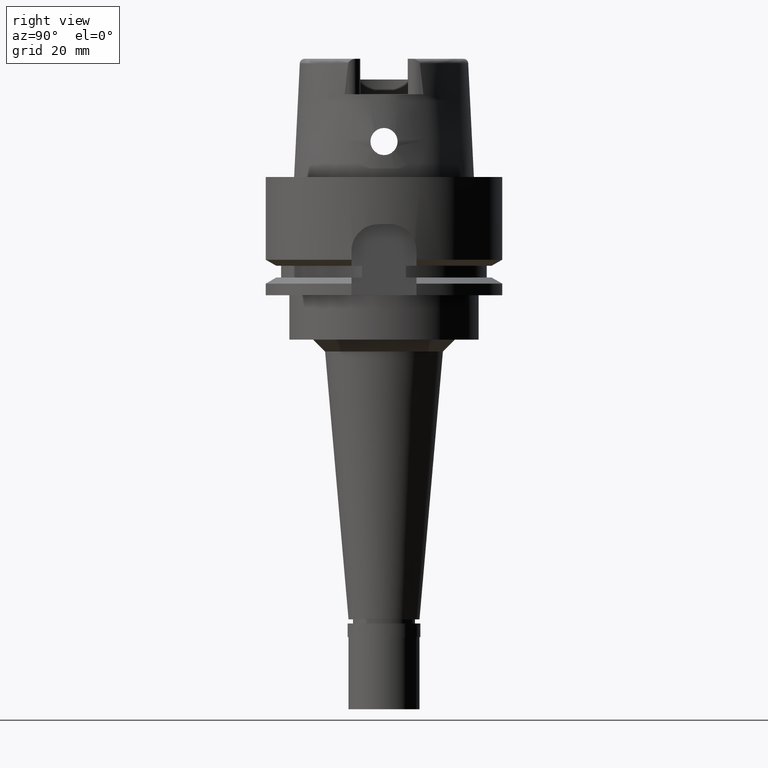
[diagram: clean part render]
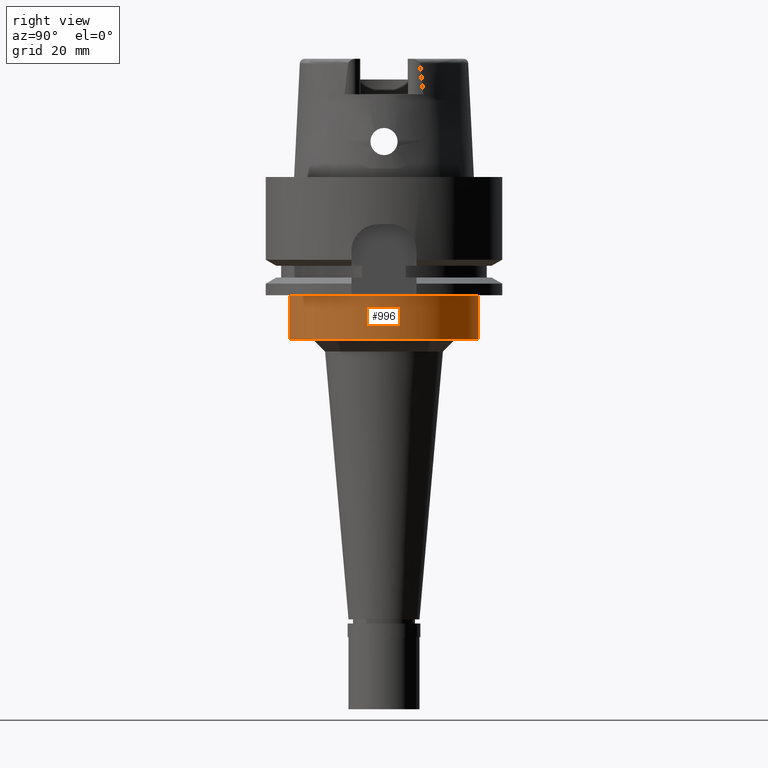
[diagram: same view with one face highlighted and labeled with its STEP entity id]
A machine part, right view. The second image highlights one B-rep face of the part: STEP entity #996.
In plain terms, the highlighted cylindrical surface (partial cylindrical patch) has radius 16 mm, axis along (0, 0, -1).
Its self-contained STEP definition (entity closure, byte-faithful):
#200 = DIRECTION ( 'NONE',  ( 0.0000000000000000000, 0.0000000000000000000, -1.000000000000000000 ) ) ;
#312 = LINE ( 'NONE', #3135, #4010 ) ;
#488 = VERTEX_POINT ( 'NONE', #2368 ) ;
#590 = CARTESIAN_POINT ( 'NONE',  ( 0.0000000000000000000, 16.00000000000000000, -20.00000000000000000 ) ) ;
#811 = ORIENTED_EDGE ( 'NONE', *, *, #1245, .F. ) ;
#996 = ADVANCED_FACE ( 'NONE', ( #4768 ), #5252, .T. ) ;
#1017 = EDGE_LOOP ( 'NONE', ( #2930, #2815, #3536, #811 ) ) ;
#1035 = AXIS2_PLACEMENT_3D ( 'NONE', #4769, #1939, #3998 ) ;
#1174 = DIRECTION ( 'NONE',  ( 0.0000000000000000000, 0.0000000000000000000, -1.000000000000000000 ) ) ;
#1245 = EDGE_CURVE ( 'NONE', #1404, #5308, #1365, .T. ) ;
#1365 = LINE ( 'NONE', #590, #1605 ) ;
#1404 = VERTEX_POINT ( 'NONE', #2779 ) ;
#1516 = AXIS2_PLACEMENT_3D ( 'NONE', #4843, #1174, #2786 ) ;
#1605 = VECTOR ( 'NONE', #2587, 1000.000000000000000 ) ;
#1939 = DIRECTION ( 'NONE',  ( 0.0000000000000000000, 0.0000000000000000000, 1.000000000000000000 ) ) ;
#2355 = EDGE_CURVE ( 'NONE', #1404, #4352, #5214, .T. ) ;
#2368 = CARTESIAN_POINT ( 'NONE',  ( 0.0000000000000000000, -16.00000000000000000, -27.50000000000000000 ) ) ;
#2587 = DIRECTION ( 'NONE',  ( 0.0000000000000000000, 0.0000000000000000000, -1.000000000000000000 ) ) ;
#2627 = CARTESIAN_POINT ( 'NONE',  ( 0.0000000000000000000, 1.534482439332000152E-14, -20.00000000000000000 ) ) ;
#2710 = AXIS2_PLACEMENT_3D ( 'NONE', #2627, #200, #4213 ) ;
#2779 = CARTESIAN_POINT ( 'NONE',  ( 0.0000000000000000000, 16.00000000000000000, -20.00000000000000000 ) ) ;
#2786 = DIRECTION ( 'NONE',  ( 0.0000000000000000000, -1.000000000000000000, 0.0000000000000000000 ) ) ;
#2815 = ORIENTED_EDGE ( 'NONE', *, *, #3198, .T. ) ;
#2874 = EDGE_CURVE ( 'NONE', #488, #5308, #4006, .T. ) ;
#2930 = ORIENTED_EDGE ( 'NONE', *, *, #2355, .T. ) ;
#3135 = CARTESIAN_POINT ( 'NONE',  ( 0.0000000000000000000, -16.00000000000000000, -20.00000000000000000 ) ) ;
#3198 = EDGE_CURVE ( 'NONE', #4352, #488, #312, .T. ) ;
#3536 = ORIENTED_EDGE ( 'NONE', *, *, #2874, .T. ) ;
#3855 = CARTESIAN_POINT ( 'NONE',  ( 0.0000000000000000000, 16.00000000000000000, -27.50000000000000000 ) ) ;
#3998 = DIRECTION ( 'NONE',  ( 0.0000000000000000000, -1.000000000000000000, 0.0000000000000000000 ) ) ;
#4006 = CIRCLE ( 'NONE', #1035, 16.00000000000000000 ) ;
#4007 = CARTESIAN_POINT ( 'NONE',  ( 0.0000000000000000000, -16.00000000000000000, -20.00000000000000000 ) ) ;
#4010 = VECTOR ( 'NONE', #5246, 1000.000000000000000 ) ;
#4213 = DIRECTION ( 'NONE',  ( 0.0000000000000000000, 1.000000000000000000, 0.0000000000000000000 ) ) ;
#4352 = VERTEX_POINT ( 'NONE', #4007 ) ;
#4768 = FACE_OUTER_BOUND ( 'NONE', #1017, .T. ) ;
#4769 = CARTESIAN_POINT ( 'NONE',  ( 0.0000000000000000000, 1.534482439332000152E-14, -27.50000000000000000 ) ) ;
#4843 = CARTESIAN_POINT ( 'NONE',  ( 0.0000000000000000000, 1.534482439332000152E-14, 25.30000000000000071 ) ) ;
#5214 = CIRCLE ( 'NONE', #2710, 16.00000000000000000 ) ;
#5246 = DIRECTION ( 'NONE',  ( 0.0000000000000000000, 0.0000000000000000000, -1.000000000000000000 ) ) ;
#5252 = CYLINDRICAL_SURFACE ( 'NONE', #1516, 16.00000000000000000 ) ;
#5308 = VERTEX_POINT ( 'NONE', #3855 ) ;